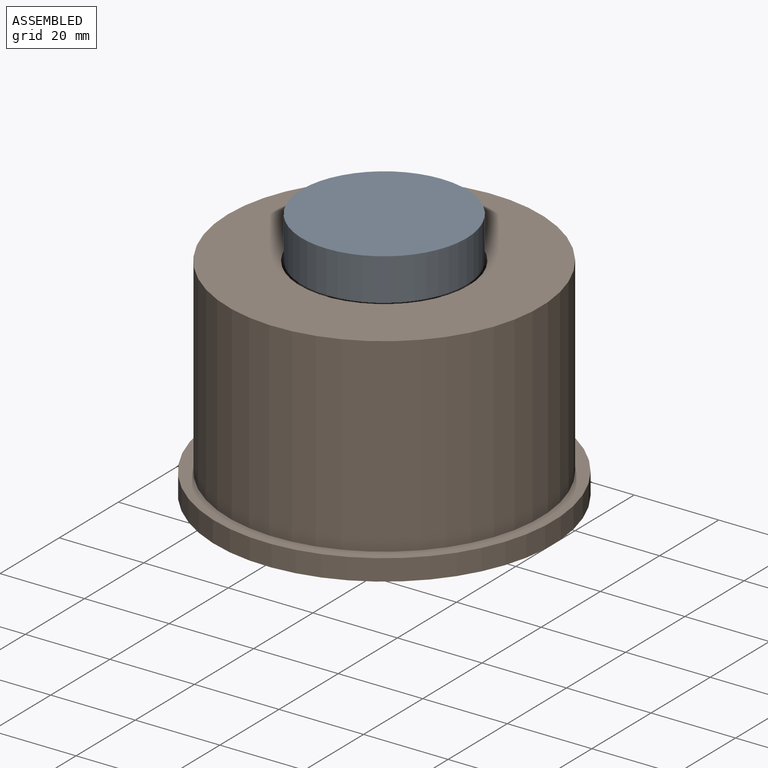
[diagram: assembled view]
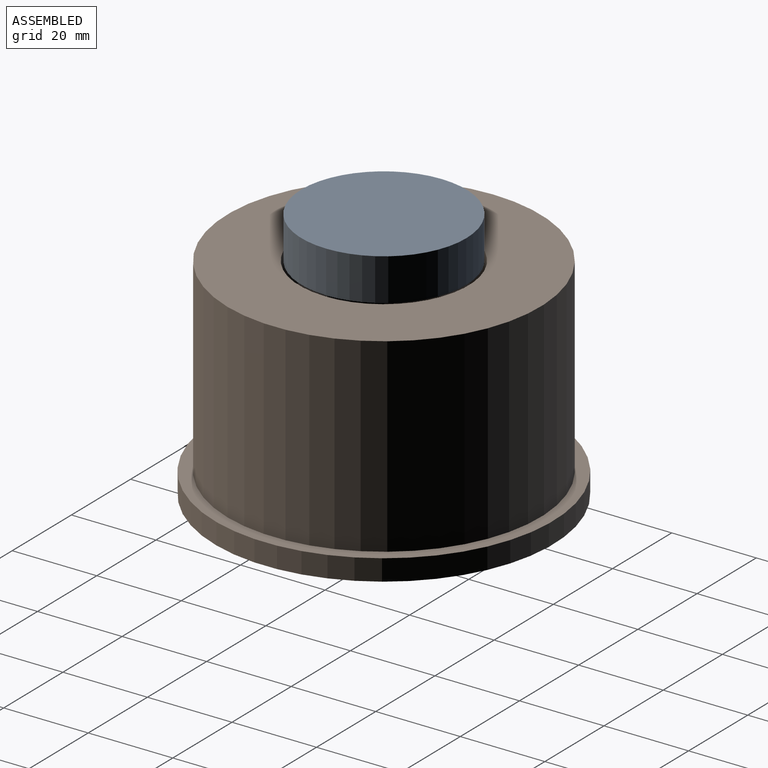
[diagram: assembled view, second angle]
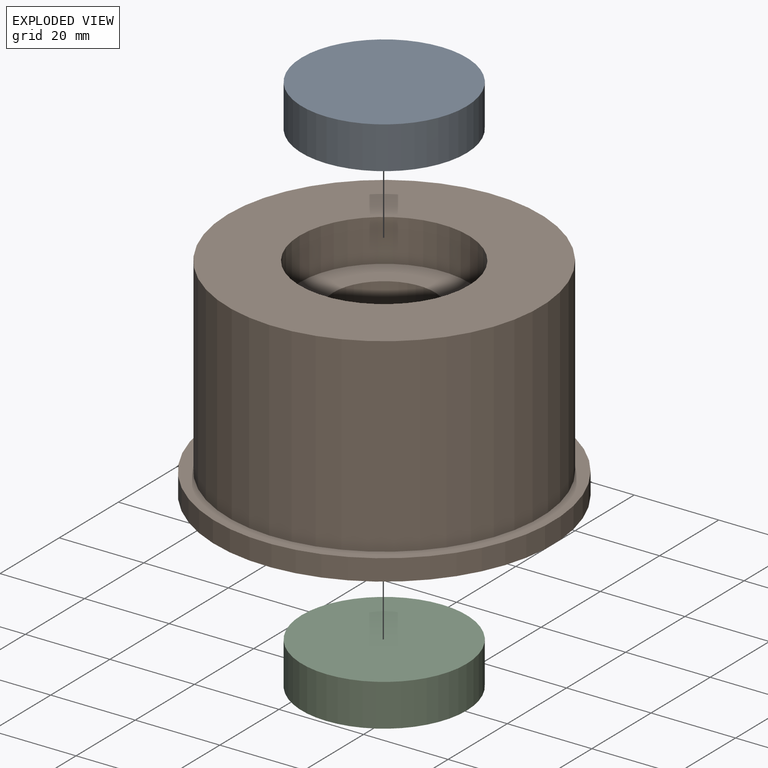
[diagram: exploded view]
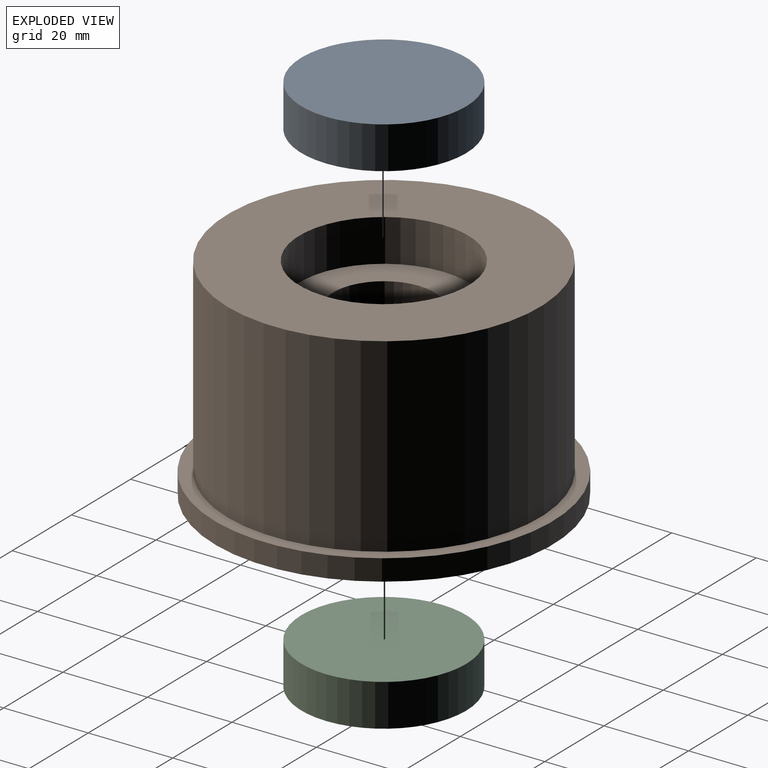
[diagram: exploded view, second angle]
ASSEMBLY  parts=3 mates=2
PART A: 3 faces, bbox 39x39x10 mm
  f0: plane 39x39mm, normal (0,0,-1), area 1194.6mm2, adj f1
  f1: cylinder r=19.5mm len=39mm, axis (0,0,-1), area 1225.2mm2, adj f0,f2
  f2: plane 39x39mm, normal (0,0,1), area 1194.6mm2, adj f1
PART B: 10 faces, bbox 80x80x50 mm
  f0: cylinder r=20mm len=40mm, axis (0,0,-1), area 1256.6mm2, adj f1,f9
  f1: plane 80x80mm, normal (0,0,-1), area 3769.9mm2, adj f0,f2
  f2: cylinder r=40mm len=80mm, axis (0,0,-1), area 1256.6mm2, adj f1,f3
  f3: plane 80x80mm, normal (0,0,1), area 725.7mm2, adj f2,f4
  f4: cylinder r=37mm len=74mm, axis (0,0,-1), area 10461.5mm2, adj f3,f5
  f5: plane 74x74mm, normal (0,0,1), area 3044.2mm2, adj f4,f6
  f6: cylinder r=20mm len=40mm, axis (0,0,-1), area 1256.6mm2, adj f5,f7
  f7: plane 40x40mm, normal (0,0,1), area 804.2mm2, adj f6,f8
  f8: cylinder r=12mm len=30mm, axis (0,0,-1), area 2261.9mm2, adj f7,f9
  f9: plane 40x40mm, normal (0,0,-1), area 804.2mm2, adj f0,f8
PART C: same geometry as A
PLACE A rot(axis=(0.71,0.71,0),180deg) t=(-27.03,-2.98,58.93)mm
PLACE B t=(-27.03,-2.98,-1.07)mm fixed
PLACE C rot(axis=(1,0,0),180deg) t=(-27.03,-2.98,8.93)mm
MATE fastened B.f0 <-> C.f1  axis (0,0,-1) through (-27.03,-2.98,8.93)mm
MATE slider B.f0 <-> A.f1  axis (0,0,1) through (-27.03,-2.98,38.93)mm
